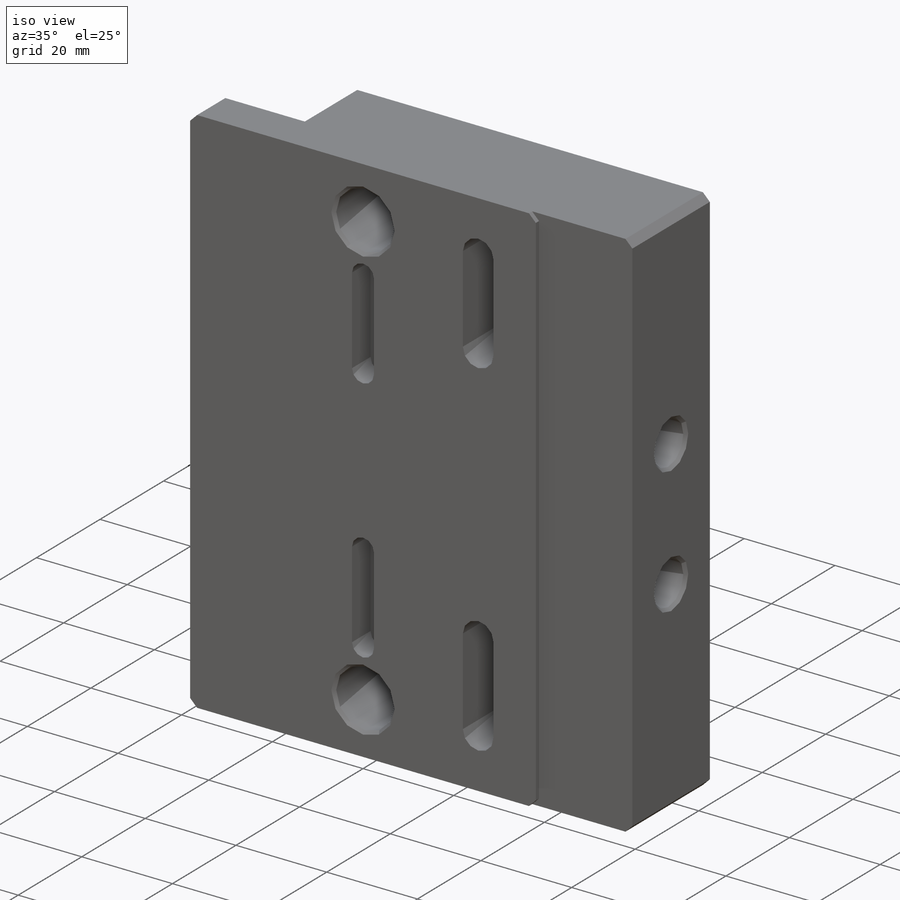
[diagram: iso view]
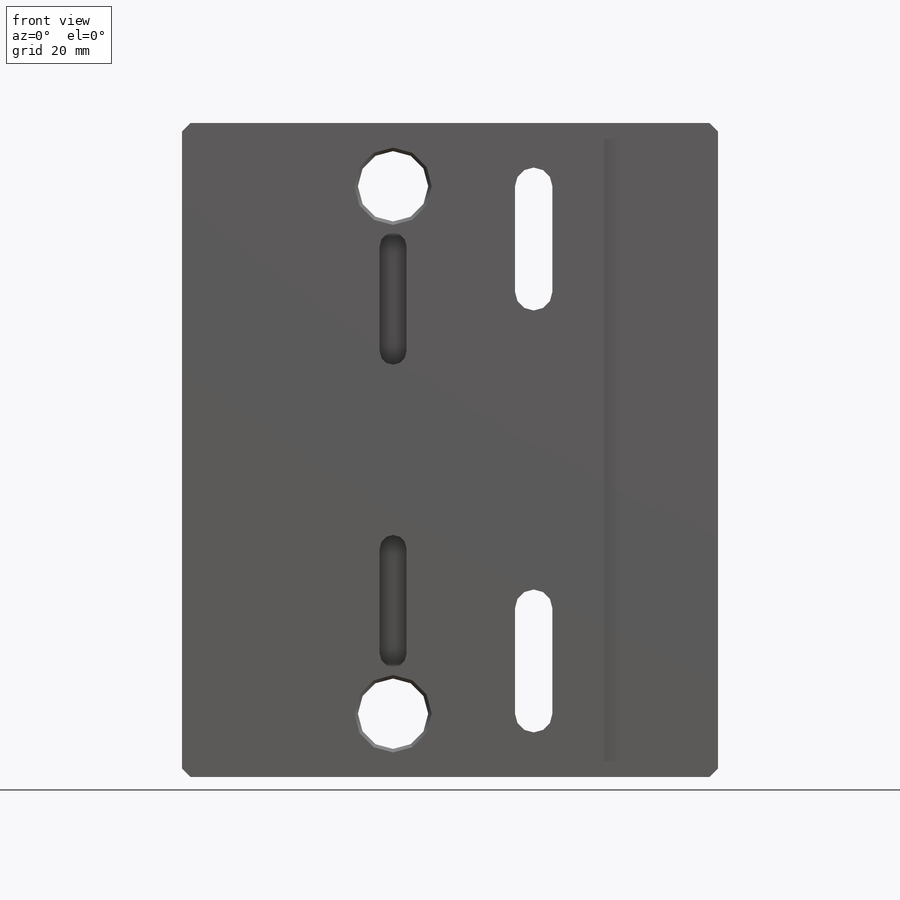
[diagram: front view]
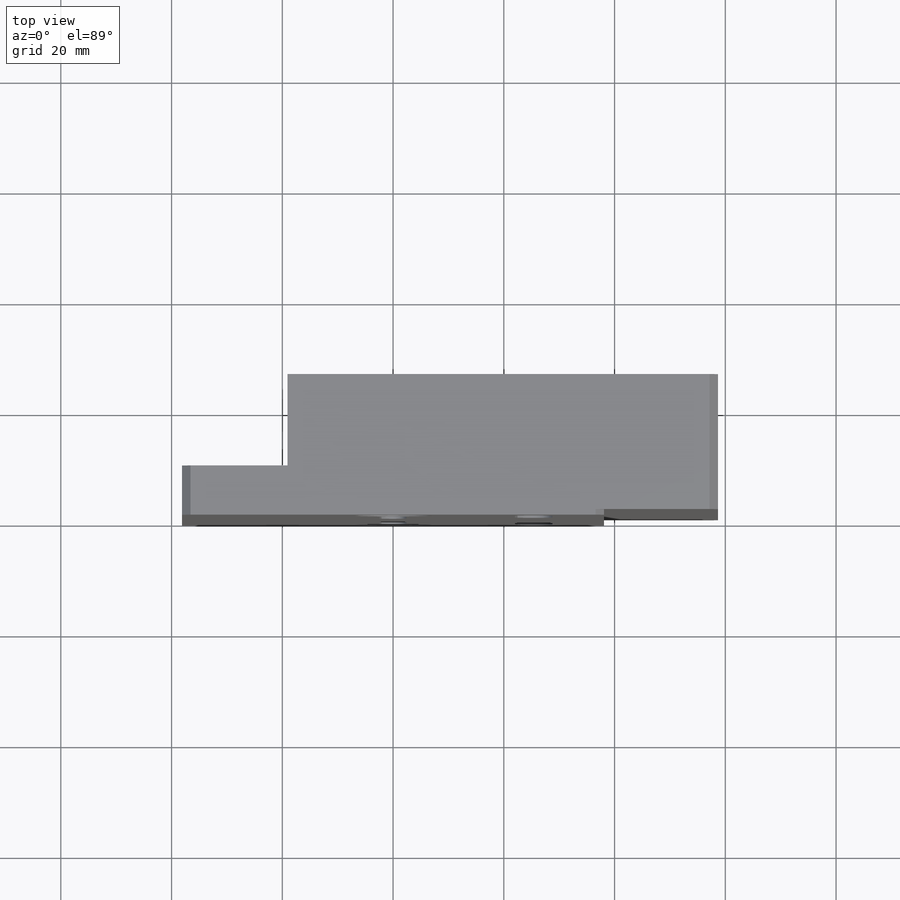
[diagram: top view]
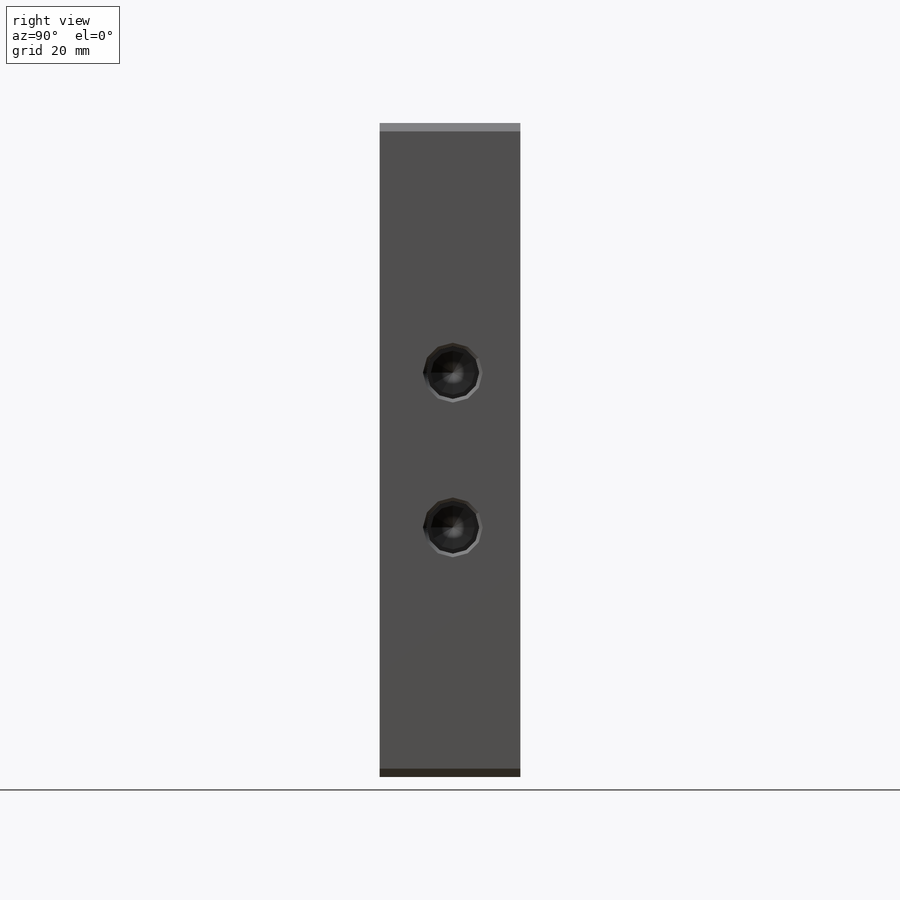
[diagram: right view]
SOLIDWORKS PART (.sldprt)
format: sldprt  version: not decoded by parser v0  size: 673,280 bytes
history: native  units: mm
features: sketch x10, cut_extrude x5, hole x2, material x1, extrude x1 (+11 scaffold rows collapsed)
feature tree (30):
  scaffold x11  (default folders/planes/origin — collapsed)
  material  "6061-T6 Al"
  sketch  "Sketch6"  dims[c1.D1=21.59mm c1.D2=60.325mm c2.D1=63.5mm c2.D2=889.0mm c2.D3=917.575mm c2.D4=895.985mm c3.D2=904.24mm c3.D5=901.7mm c3.D6=906.78mm c4.D2=~1788.74878mm c4.D4=898.525mm c4.D7=917.575mm c4.D3=917.575mm c4.D9=2.54mm c4.D10=7.62mm c4.D1=17.78mm c4.D12=895.985mm c5.D1=19.05mm c5.D3=19.05mm c5.D5=19.05mm c5.D6=25.4mm c5.D2=75.438mm c6.D1=5.08mm c6.D5=8.255mm c6.D6=8.255mm c6.D7=152.4mm c7.D1=304.8mm c7.D5=5.08mm c8.D1=~313.195127mm c8.D6=~31.158395mm c9.D1=~73.03881mm c9.D6=330.2mm c9.D7=6.35mm c9.D8=7.62mm c9.D10=3.302mm c9.D11=~174.532925mm c10.D10=1.27mm c10.D11=~158.568571mm c11.D10=1.27mm c11.D11=~174.532925mm c11.D6=330.2mm c12.D10=~108.162088mm c12.D11=~24.260077mm c12.D6=~329.349592mm c12.D12=~329.349592mm c13.D6=330.2mm c13.D13=~1047.197551mm c13.D14=~17.488308mm c14.D13=~1047.197551mm c14.D14=~349.06585mm c14.D15=~25.440094mm c14.D2=50.8mm c14.D3=88.9mm c14.D4=25.4mm c14.D5=127.0mm c14.D1=120.65mm c15.D2=38.1mm c15.D3=19.05mm c15.D4=4.826mm c15.D5=177.8mm c15.D6=54.61mm c15.D7=1.524mm c15.D14=45.212mm c16.D7=12.7mm c16.D8=12.7mm c16.D12=12.7mm c17.D7=12.7mm c17.D3=19.05mm c17.D5=1.524mm c17.D1=118.11mm c17.D2=38.1mm c18.D5=58.674mm c18.D7=1.524mm c18.D6=1.0mm c18.D12=2.54mm]
  extrude  "Boss-Extrude1"  Depth=25.4mm
  hole  "1/2-13 Tapped Hole1"  Diameter=12.7mm Depth=25.4mm
  sketch  "Sketch8"  dims[D1=95.25mm]
  sketch  "Sketch7"  dims[hole-wizard template sketch: 34 standard entries collapsed; hole parameters kept: c5.Thread Major Dia.=12.7mm c5.Thru Tap Drill Depth=25.4mm c5.Near C'Sink Dia.=13.97mm c5.Near C'Sink Angle=~1570.796327mm c5.Far C'Sink Dia.=13.97mm c5.Far C'Sink Angle=~1570.796327mm]  [2 undecoded]
  sketch  "Sketch9"
  cut_extrude  "Cut-Extrude1"  Depth=5.842mm
  sketch  "Sketch12"  dims[D1=0.0mm]
  cut_extrude  "Cut-Extrude2"  Depth=1.016mm
  hole  "3/8-16 Tapped Hole1"  Diameter=7.9375mm Depth=25.6032mm
  sketch  "Sketch11"  dims[D1=27.94mm]
  sketch  "Sketch10"  dims[hole-wizard template sketch: 20 standard entries collapsed; hole parameters kept: c3.Tap Drill Dia.=7.9375mm c3.Tap Drill Depth=25.6032mm c3.Thread Major Dia.=9.525mm c3.Thread Depth=21.59mm c3.Near C'Sink Dia.=10.795mm c3.Near C'Sink Angle=~1570.796327mm c3.Drill Angle=~2059.488517mm]  [2 undecoded]
  sketch  "Sketch13"  dims[c1.D3=6.7564mm c1.D1=76.2mm c1.D2=25.4mm c1.D4=~20.61657mm c2.D1=76.2mm]
  cut_extrude  "Cut-Extrude3"  [1 undecoded]
  sketch  "Sketch14"  dims[D1=14.2875mm]
  cut_extrude  "Cut-Extrude4"  Depth=10.668mm
  sketch  "Sketch15"  dims[D1=16.51mm D2=19.05mm]
  cut_extrude  "Cut-Extrude5"  [1 undecoded]
decode coverage: 15 of 18 modeling features carry decoded parameters
note: ~ marks probable driven/reference dimensions
note: 2 parameter values undecoded
note: suppression state not decoded; provenance and decode notes live in map.json
note: 4 required parameter values undecoded (feature->parameter linkage not recoverable at this tier; creation-order binding heuristic only, values carry confidence <= 0.55)
